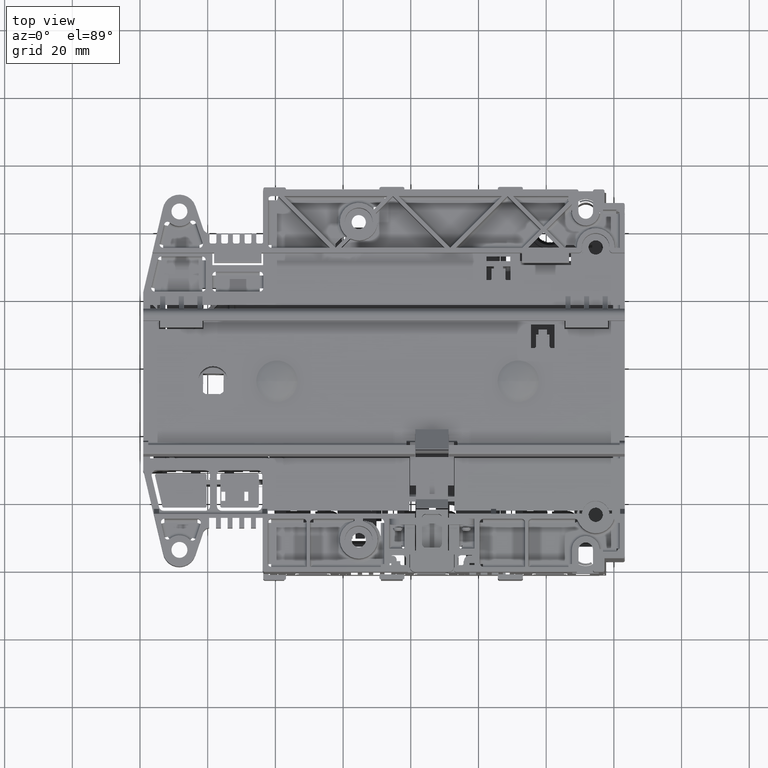
[diagram: clean part render]
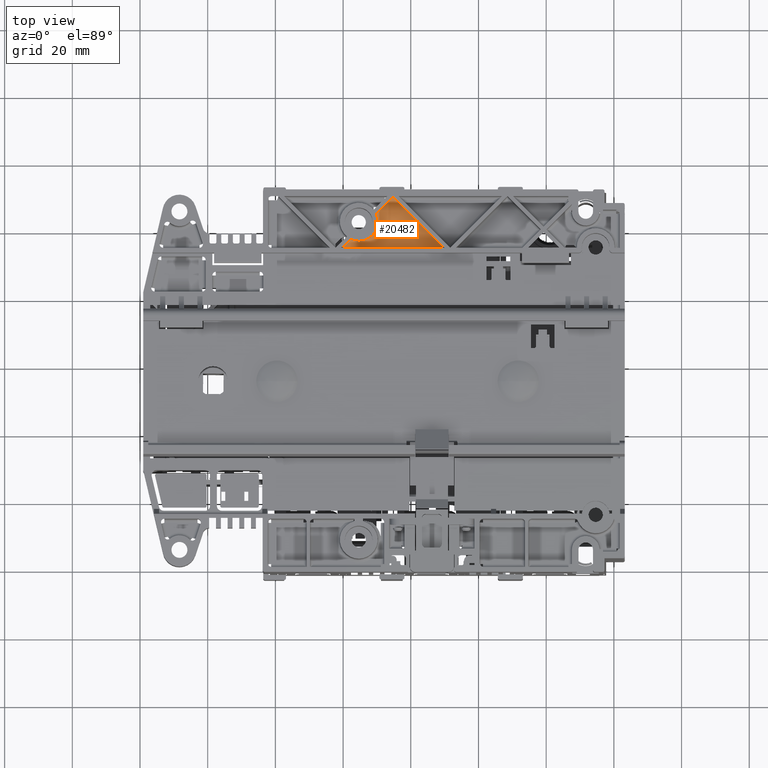
[diagram: same view with one face highlighted and labeled with its STEP entity id]
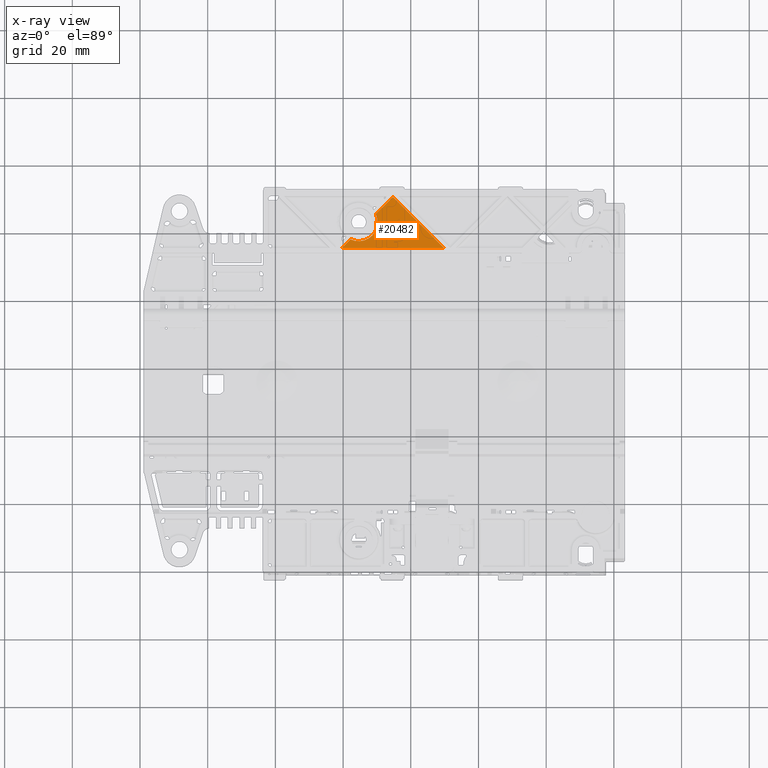
[diagram: x-ray of the same camera — body ghosted, the highlighted face saturated]
A machine part, top view. The second image highlights one B-rep face of the part: STEP entity #20482.
The next image is the same camera in x-ray: the body ghosted, the highlighted face saturated — about 0% of this face is hidden behind the body in this view.
In plain terms, the highlighted planar face has unit normal (0, 0, 1).
Its self-contained STEP definition (entity closure, byte-faithful):
#9550=DIRECTION('',(1.E0,2.659205872879E-7,-4.567604220217E-9));
#9551=VECTOR('',#9550,3.045312789063E1);
#9552=CARTESIAN_POINT('',(1.394987039538E2,4.538539011669E2,1.804960766024E2));
#9553=LINE('',#9552,#9551);
#9566=DIRECTION('',(7.071083420321E-1,7.071052203375E-1,-3.696808169498E-8));
#9567=VECTOR('',#9566,3.797717212590E0);
#9568=CARTESIAN_POINT('',(1.394987039538E2,4.538539011669E2,1.804960766024E2));
#9569=LINE('',#9568,#9567);
#9570=CARTESIAN_POINT('',(1.446249892232E2,4.615793331628E2,1.804960763496E2));
#9571=DIRECTION('',(0.E0,0.E0,1.E0));
#9572=DIRECTION('',(-4.358728120928E-1,-9.000082731166E-1,0.E0));
#9573=AXIS2_PLACEMENT_3D('',#9570,#9571,#9572);
#9575=DIRECTION('',(7.071067811854E-1,7.071067811877E-1,-8.718669342063E-9));
#9576=VECTOR('',#9575,7.156263902175E0);
#9577=CARTESIAN_POINT('',(1.496650355526E2,4.640202209105E2,1.804960763180E2));
#9578=LINE('',#9577,#9576);
#9579=DIRECTION('',(7.071067621456E-1,-7.071068002275E-1,9.646521483392E-9));
#9580=VECTOR('',#9579,2.153359913065E1);
#9581=CARTESIAN_POINT('',(1.547252782858E2,4.690804636437E2,1.804960762556E2));
#9582=LINE('',#9581,#9580);
#12747=CARTESIAN_POINT('',(1.394987039538E2,4.538539011669E2,1.804960766024E2));
#12748=CARTESIAN_POINT('',(1.421841014755E2,4.565392868333E2,1.804960764620E2));
#12749=VERTEX_POINT('',#12747);
#12750=VERTEX_POINT('',#12748);
#13946=CARTESIAN_POINT('',(1.699518318444E2,4.538539092651E2,1.804960764633E2));
#13947=VERTEX_POINT('',#13946);
#13948=CARTESIAN_POINT('',(1.496650355526E2,4.640202209105E2,1.804960763496E2));
#13949=VERTEX_POINT('',#13948);
#13950=CARTESIAN_POINT('',(1.547252782858E2,4.690804636437E2,1.804960762556E2));
#13951=VERTEX_POINT('',#13950);
#20469=CARTESIAN_POINT('',(1.547252659002E2,4.614671804064E2,1.804960763437E2));
#20470=DIRECTION('',(5.597947043627E-9,3.257736162371E-8,1.E0));
#20471=DIRECTION('',(-1.E0,0.E0,5.597947043627E-9));
#20472=AXIS2_PLACEMENT_3D('',#20469,#20470,#20471);
#20473=PLANE('',#20472);
#20474=ORIENTED_EDGE('',*,*,#20422,.F.);
#20476=ORIENTED_EDGE('',*,*,#20475,.T.);
#20477=ORIENTED_EDGE('',*,*,#20464,.T.);
#20478=ORIENTED_EDGE('',*,*,#20450,.T.);
#20479=ORIENTED_EDGE('',*,*,#20436,.T.);
#20480=EDGE_LOOP('',(#20474,#20476,#20477,#20478,#20479));
#20481=FACE_OUTER_BOUND('',#20480,.F.);
#20482=ADVANCED_FACE('',(#20481),#20473,.T.);
#9574=CIRCLE('',#9573,5.6E0);
#20422=EDGE_CURVE('',#12749,#13947,#9553,.T.);
#20436=EDGE_CURVE('',#13951,#13947,#9582,.T.);
#20450=EDGE_CURVE('',#13949,#13951,#9578,.T.);
#20464=EDGE_CURVE('',#12750,#13949,#9574,.T.);
#20475=EDGE_CURVE('',#12749,#12750,#9569,.T.);